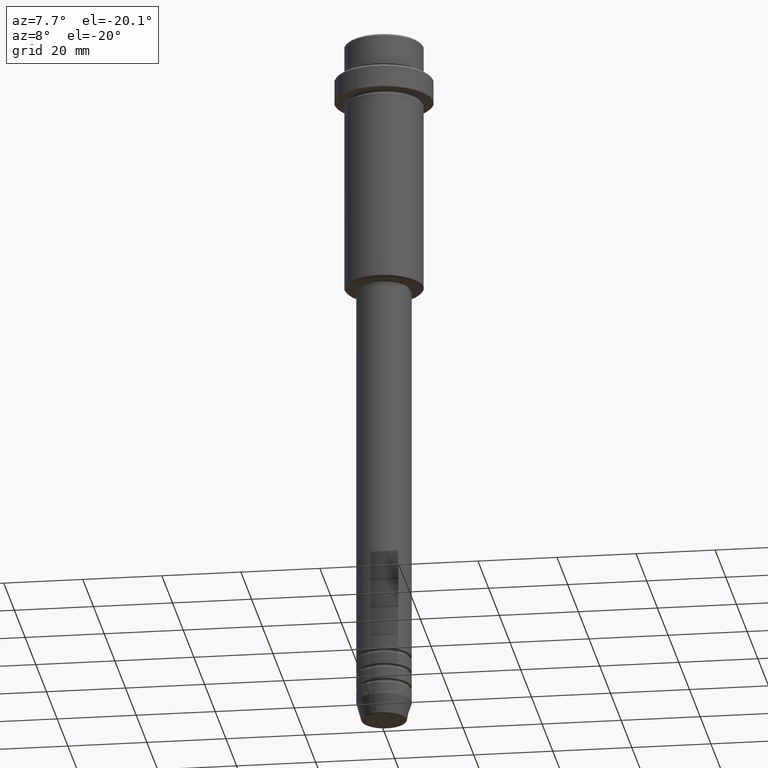
[diagram: clean part render]
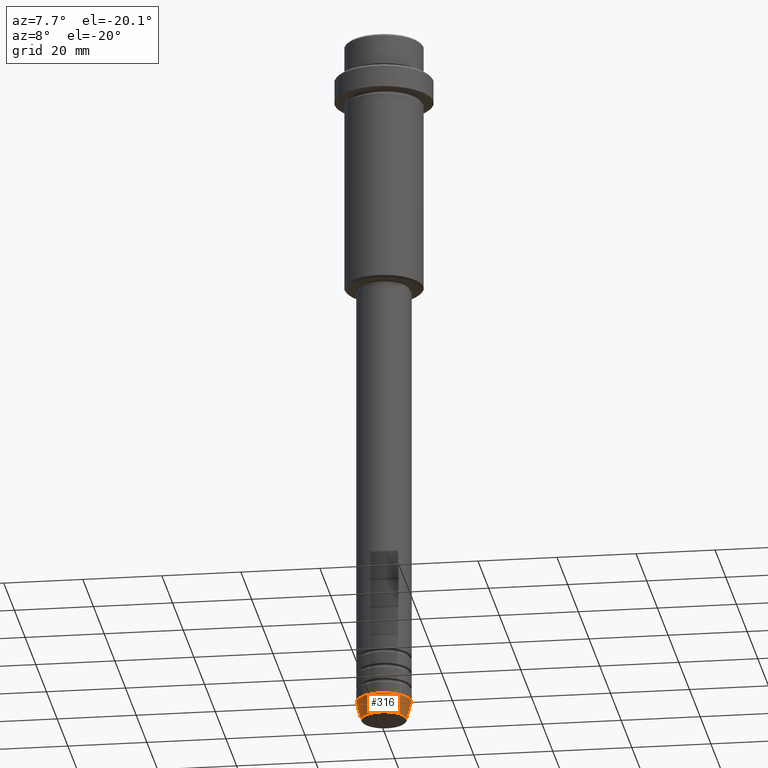
[diagram: same view with one face highlighted and labeled with its STEP entity id]
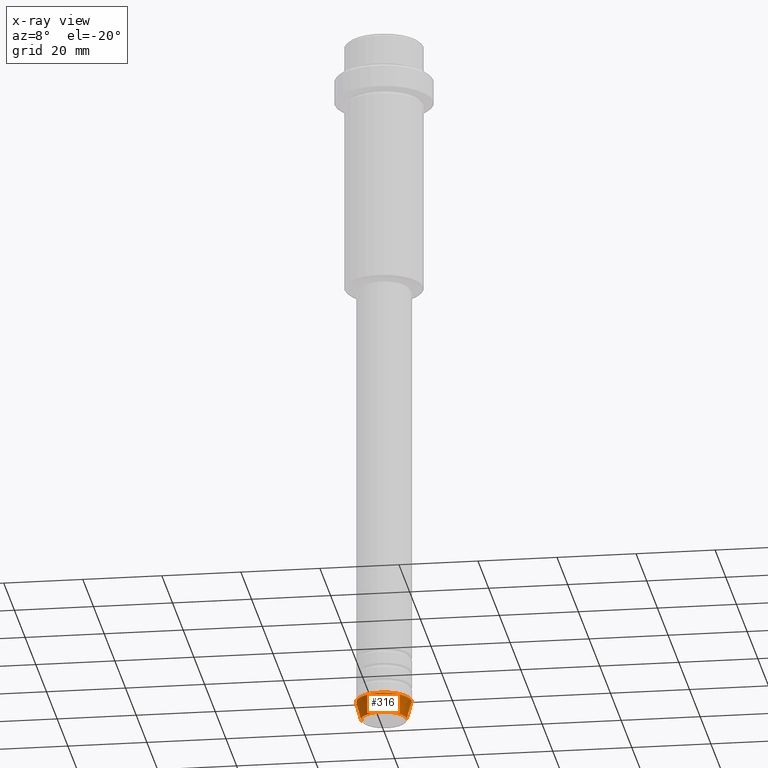
[diagram: x-ray of the same camera — body ghosted, the highlighted face saturated]
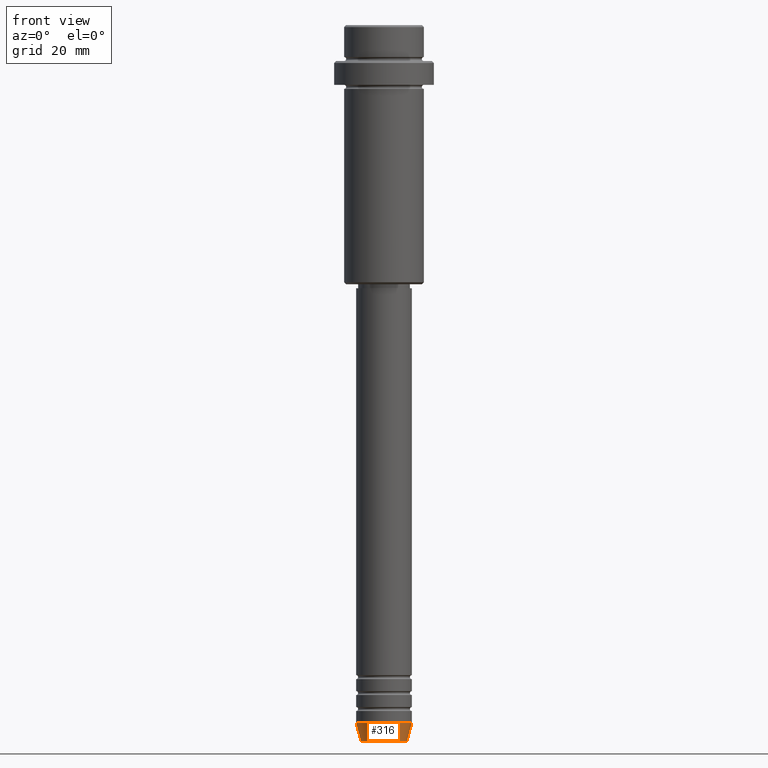
[diagram: same view with one face highlighted and labeled with its STEP entity id]
A machine part, auxiliary view. The second image highlights one B-rep face of the part: STEP entity #316.
The next image is the same camera in x-ray: the body ghosted, the highlighted face saturated — about 0% of this face is hidden behind the body in this view.
A second angle (front view) of the same face is appended — the face is thin or edge-on in the first view.
In plain terms, the highlighted conical surface has half-angle 15 deg.
Its self-contained STEP definition (entity closure, byte-faithful):
#143 = LINE ( 'NONE', #282, #1263 ) ;
#155 = DIRECTION ( 'NONE',  ( -0.000000000000000000, -0.000000000000000000, 1.000000000000000000 ) ) ;
#159 = CARTESIAN_POINT ( 'NONE',  ( -5.759553456999435994, 7.812973149831951773E-16, -179.6294095225512422 ) ) ;
#160 = VERTEX_POINT ( 'NONE', #665 ) ;
#231 = CIRCLE ( 'NONE', #613, 5.759553456999435994 ) ;
#270 = ORIENTED_EDGE ( 'NONE', *, *, #488, .F. ) ;
#282 = CARTESIAN_POINT ( 'NONE',  ( 7.000000000000000000, 0.000000000000000000, -175.0000000000000000 ) ) ;
#300 = ORIENTED_EDGE ( 'NONE', *, *, #592, .T. ) ;
#316 = ADVANCED_FACE ( 'NONE', ( #1293 ), #954, .T. ) ;
#327 = CIRCLE ( 'NONE', #867, 7.000000000000000000 ) ;
#336 = CARTESIAN_POINT ( 'NONE',  ( -7.000000000000000000, 8.572527594031473190E-16, -175.0000000000000000 ) ) ;
#429 = AXIS2_PLACEMENT_3D ( 'NONE', #955, #1065, #1196 ) ;
#432 = ORIENTED_EDGE ( 'NONE', *, *, #1183, .F. ) ;
#488 = EDGE_CURVE ( 'NONE', #1287, #607, #646, .T. ) ;
#568 = DIRECTION ( 'NONE',  ( -0.000000000000000000, -0.000000000000000000, 1.000000000000000000 ) ) ;
#592 = EDGE_CURVE ( 'NONE', #1287, #868, #231, .T. ) ;
#595 = EDGE_LOOP ( 'NONE', ( #270, #300, #833, #432 ) ) ;
#607 = VERTEX_POINT ( 'NONE', #336 ) ;
#613 = AXIS2_PLACEMENT_3D ( 'NONE', #853, #155, #902 ) ;
#627 = CARTESIAN_POINT ( 'NONE',  ( -7.000000000000000000, 8.572527594031473190E-16, -175.0000000000000000 ) ) ;
#646 = LINE ( 'NONE', #627, #724 ) ;
#665 = CARTESIAN_POINT ( 'NONE',  ( 7.000000000000000000, 0.000000000000000000, -175.0000000000000000 ) ) ;
#707 = EDGE_CURVE ( 'NONE', #868, #160, #143, .T. ) ;
#724 = VECTOR ( 'NONE', #1201, 1000.000000000000000 ) ;
#833 = ORIENTED_EDGE ( 'NONE', *, *, #707, .T. ) ;
#853 = CARTESIAN_POINT ( 'NONE',  ( 0.000000000000000000, 0.000000000000000000, -179.6294095225512422 ) ) ;
#867 = AXIS2_PLACEMENT_3D ( 'NONE', #1036, #568, #1249 ) ;
#868 = VERTEX_POINT ( 'NONE', #1278 ) ;
#902 = DIRECTION ( 'NONE',  ( 1.000000000000000000, 0.000000000000000000, 0.000000000000000000 ) ) ;
#954 = CONICAL_SURFACE ( 'NONE', #429, 7.000000000000000000, 0.2617993877991500740 ) ;
#955 = CARTESIAN_POINT ( 'NONE',  ( 0.000000000000000000, 0.000000000000000000, -175.0000000000000000 ) ) ;
#1036 = CARTESIAN_POINT ( 'NONE',  ( 0.000000000000000000, 0.000000000000000000, -175.0000000000000000 ) ) ;
#1065 = DIRECTION ( 'NONE',  ( -0.000000000000000000, -0.000000000000000000, 1.000000000000000000 ) ) ;
#1183 = EDGE_CURVE ( 'NONE', #607, #160, #327, .T. ) ;
#1196 = DIRECTION ( 'NONE',  ( 1.000000000000000000, 0.000000000000000000, 0.000000000000000000 ) ) ;
#1201 = DIRECTION ( 'NONE',  ( -0.2588190451025213501, 3.169619151431772337E-17, 0.9659258262890680902 ) ) ;
#1231 = DIRECTION ( 'NONE',  ( 0.2588190451025213501, 0.000000000000000000, 0.9659258262890680902 ) ) ;
#1249 = DIRECTION ( 'NONE',  ( 1.000000000000000000, 0.000000000000000000, 0.000000000000000000 ) ) ;
#1263 = VECTOR ( 'NONE', #1231, 1000.000000000000000 ) ;
#1278 = CARTESIAN_POINT ( 'NONE',  ( 5.759553456999435994, 0.000000000000000000, -179.6294095225512422 ) ) ;
#1287 = VERTEX_POINT ( 'NONE', #159 ) ;
#1293 = FACE_OUTER_BOUND ( 'NONE', #595, .T. ) ;